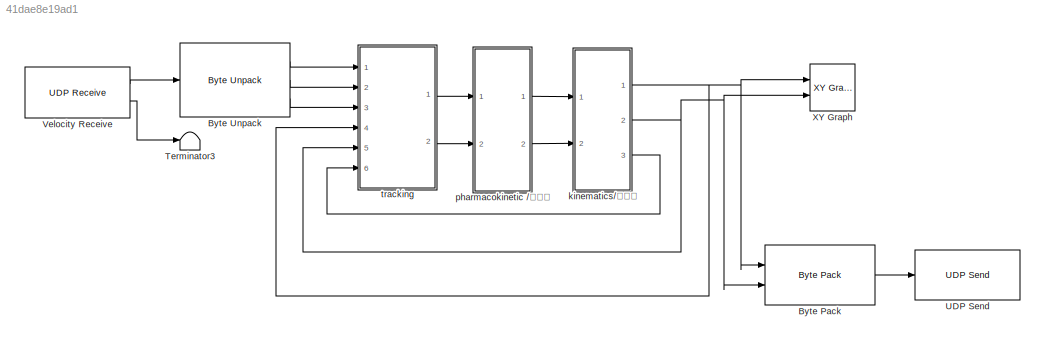
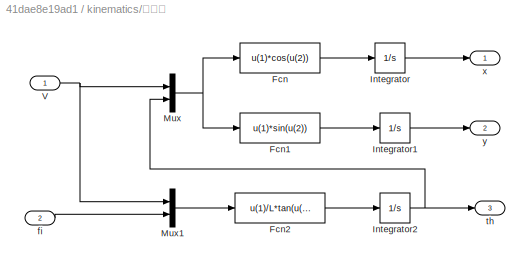
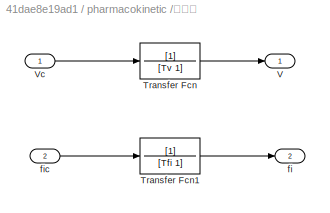
MODEL slx_41dae8e19ad1
KIND model
CONFIG AbsTol = auto
CONFIG EnableMultiTasking = off
CONFIG FixedStep = auto
CONFIG MaxStep = auto
CONFIG MinStep = auto
CONFIG RelTol = 1e-3
CONFIG SampleTimeConstraint = Unconstrained
CONFIG SolverName = VariableStepAuto
CONFIG StartTime = 0.01
CONFIG StopTime = inf
BLOCK [Reference] Byte Pack  REF=etargetslib/Byte Pack
  Ports = [2, 1]
  SourceBlock = etargetslib/Byte Pack
  SourceProductBaseCode = ME
  SourceType = Byte pack
BLOCK [Reference] Byte Unpack  REF=etargetslib/Byte Unpack
  Ports = [1, 3]
  SourceBlock = etargetslib/Byte Unpack
  SourceProductBaseCode = ME
  SourceType = Byte Unpack
BLOCK [Terminator] Terminator3
BLOCK [Reference] UDP Send  REF=dspnetwork/UDP Send
  Ports = [1]
  SourceBlock = dspnetwork/UDP Send
  SourceProductBaseCode = SL
  SourceType = UDP Send
BLOCK [Reference] Velocity Receive  REF=dspnetwork/UDP Receive
  Ports = [0, 2]
  SourceBlock = dspnetwork/UDP Receive
  SourceProductBaseCode = SL
  SourceType = UDP Receive
BLOCK [Reference] XY Graph  REF=simulink/Sinks/XY Graph
  Ports = [2]
  SourceBlock = simulink/Sinks/XY Graph
  SourceProductBaseCode = SL
  SourceType = XY scope.
BLOCK [SubSystem] kinematics//运动学
  Ports = [2, 3]
  RequestExecContextInheritance = off
BLOCK [Fcn] kinematics//运动学/Fcn
  Expr = u(1)*cos(u(2))
BLOCK [Fcn] kinematics//运动学/Fcn1
  Expr = u(1)*sin(u(2))
BLOCK [Fcn] kinematics//运动学/Fcn2
  Expr = u(1)/L*tan(u(2))
BLOCK [Integrator] kinematics//运动学/Integrator
  Ports = [1, 1]
BLOCK [Integrator] kinematics//运动学/Integrator1
  Ports = [1, 1]
BLOCK [Integrator] kinematics//运动学/Integrator2
  Ports = [1, 1]
BLOCK [Mux] kinematics//运动学/Mux
  DisplayOption = bar
  Inputs = 2
  Ports = [2, 1]
BLOCK [Mux] kinematics//运动学/Mux1
  DisplayOption = bar
  Inputs = 2
  Ports = [2, 1]
BLOCK [Inport] kinematics//运动学/V
BLOCK [Inport] kinematics//运动学/fi
  Port = 2
BLOCK [Outport] kinematics//运动学/th
  Port = 3
BLOCK [Outport] kinematics//运动学/x
BLOCK [Outport] kinematics//运动学/y
  Port = 2
BLOCK [SubSystem] pharmacokinetic //动力学
  Ports = [2, 2]
  RequestExecContextInheritance = off
BLOCK [TransferFcn] pharmacokinetic //动力学/Transfer Fcn
  Denominator = [Tv 1]
BLOCK [TransferFcn] pharmacokinetic //动力学/Transfer Fcn1
  Denominator = [Tfi 1]
BLOCK [Outport] pharmacokinetic //动力学/V
BLOCK [Inport] pharmacokinetic //动力学/Vc
BLOCK [Outport] pharmacokinetic //动力学/fi
  Port = 2
BLOCK [Inport] pharmacokinetic //动力学/fic
  Port = 2
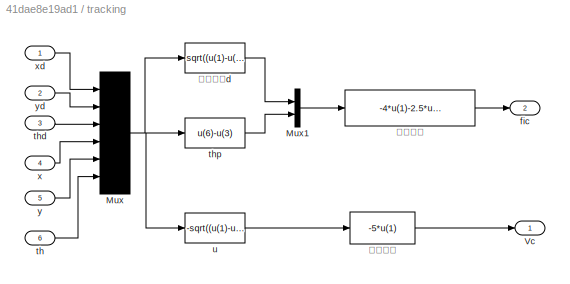
BLOCK [SubSystem] tracking
  Ports = [6, 2]
  RequestExecContextInheritance = off
BLOCK [Mux] tracking/Mux
  DisplayOption = bar
  Inputs = 6
  Ports = [6, 1]
BLOCK [Mux] tracking/Mux1
  DisplayOption = bar
  Inputs = 2
  Ports = [2, 1]
BLOCK [Outport] tracking/Vc
BLOCK [Outport] tracking/fic
  Port = 2
BLOCK [Inport] tracking/th
  Port = 6
BLOCK [Inport] tracking/thd
  Port = 3
BLOCK [Fcn] tracking/thp
  Expr = u(6)-u(3)
BLOCK [Fcn] tracking/u
  Expr = -sqrt((u(1)-u(4))^2+(u(2)-u(5))^2)*sin(atan2(u(5)-u(2),u(4)-u(1))-pi/2-u(3))
BLOCK [Inport] tracking/x
  Port = 4
BLOCK [Inport] tracking/xd
BLOCK [Inport] tracking/y
  Port = 5
BLOCK [Inport] tracking/yd
  Port = 2
BLOCK [Fcn] tracking/前向控制
  Expr = -5*u(1)
BLOCK [Fcn] tracking/横向误差d
  Expr = sqrt((u(1)-u(4))^2+(u(2)-u(5))^2)*cos(atan2(u(5)-u(2),u(4)-u(1))-pi/2-u(3))
BLOCK [Fcn] tracking/法向控制
  Expr = -4*u(1)-2.5*u(2)
LINE Byte Pack:1 -> UDP Send:1
LINE Byte Unpack:1 -> tracking:1
LINE Byte Unpack:2 -> tracking:2
LINE Byte Unpack:3 -> tracking:3
LINE Velocity Receive:1 -> Byte Unpack:1
LINE Velocity Receive:2 -> Terminator3:1
LINE kinematics//运动学/Fcn1:1 -> kinematics//运动学/Integrator1:1
LINE kinematics//运动学/Fcn2:1 -> kinematics//运动学/Integrator2:1
LINE kinematics//运动学/Fcn:1 -> kinematics//运动学/Integrator:1
LINE kinematics//运动学/Integrator1:1 -> kinematics//运动学/y:1
NET kinematics//运动学/Integrator2:1 -> kinematics//运动学/Mux:2, kinematics//运动学/th:1
LINE kinematics//运动学/Integrator:1 -> kinematics//运动学/x:1
LINE kinematics//运动学/Mux1:1 -> kinematics//运动学/Fcn2:1
NET kinematics//运动学/Mux:1 -> kinematics//运动学/Fcn1:1, kinematics//运动学/Fcn:1
NET kinematics//运动学/V:1 -> kinematics//运动学/Mux1:1, kinematics//运动学/Mux:1
LINE kinematics//运动学/fi:1 -> kinematics//运动学/Mux1:2
NET kinematics//运动学:1 -> Byte Pack:1, XY Graph:1, tracking:4
NET kinematics//运动学:2 -> Byte Pack:2, XY Graph:2, tracking:5
LINE kinematics//运动学:3 -> tracking:6
LINE pharmacokinetic //动力学/Transfer Fcn1:1 -> pharmacokinetic //动力学/fi:1
LINE pharmacokinetic //动力学/Transfer Fcn:1 -> pharmacokinetic //动力学/V:1
LINE pharmacokinetic //动力学/Vc:1 -> pharmacokinetic //动力学/Transfer Fcn:1
LINE pharmacokinetic //动力学/fic:1 -> pharmacokinetic //动力学/Transfer Fcn1:1
LINE pharmacokinetic //动力学:1 -> kinematics//运动学:1
LINE pharmacokinetic //动力学:2 -> kinematics//运动学:2
LINE tracking/Mux1:1 -> tracking/法向控制:1
NET tracking/Mux:1 -> tracking/thp:1, tracking/u:1, tracking/横向误差d:1
LINE tracking/th:1 -> tracking/Mux:6
LINE tracking/thd:1 -> tracking/Mux:3
LINE tracking/thp:1 -> tracking/Mux1:2
LINE tracking/u:1 -> tracking/前向控制:1
LINE tracking/x:1 -> tracking/Mux:4
LINE tracking/xd:1 -> tracking/Mux:1
LINE tracking/y:1 -> tracking/Mux:5
LINE tracking/yd:1 -> tracking/Mux:2
LINE tracking/前向控制:1 -> tracking/Vc:1
LINE tracking/横向误差d:1 -> tracking/Mux1:1
LINE tracking/法向控制:1 -> tracking/fic:1
LINE tracking:1 -> pharmacokinetic //动力学:1
LINE tracking:2 -> pharmacokinetic //动力学:2
note: NET lines group one-source signal fan-out (src -> all destinations, sorted); 1:1 wires keep LINE
